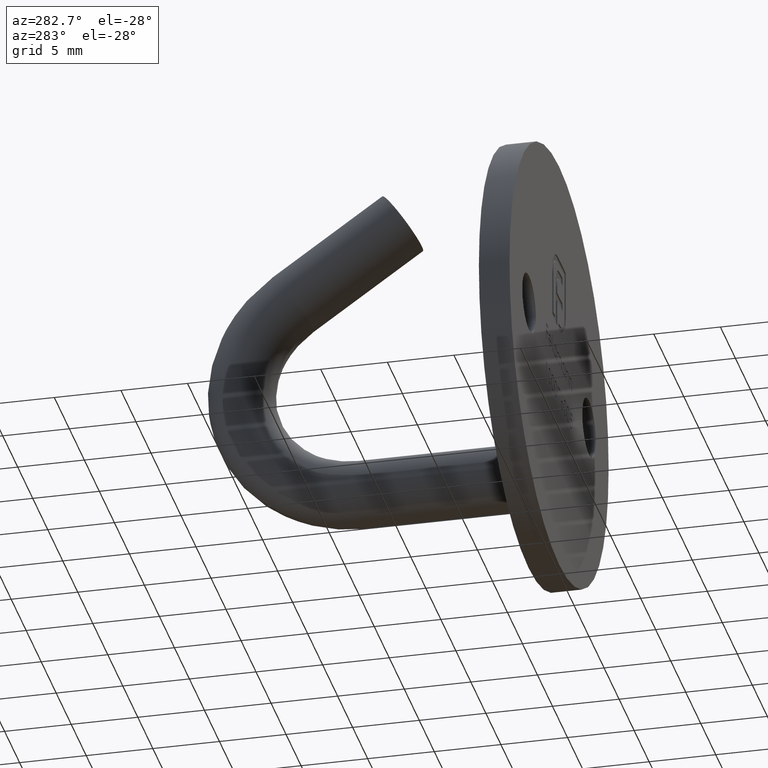
[diagram: clean part render]
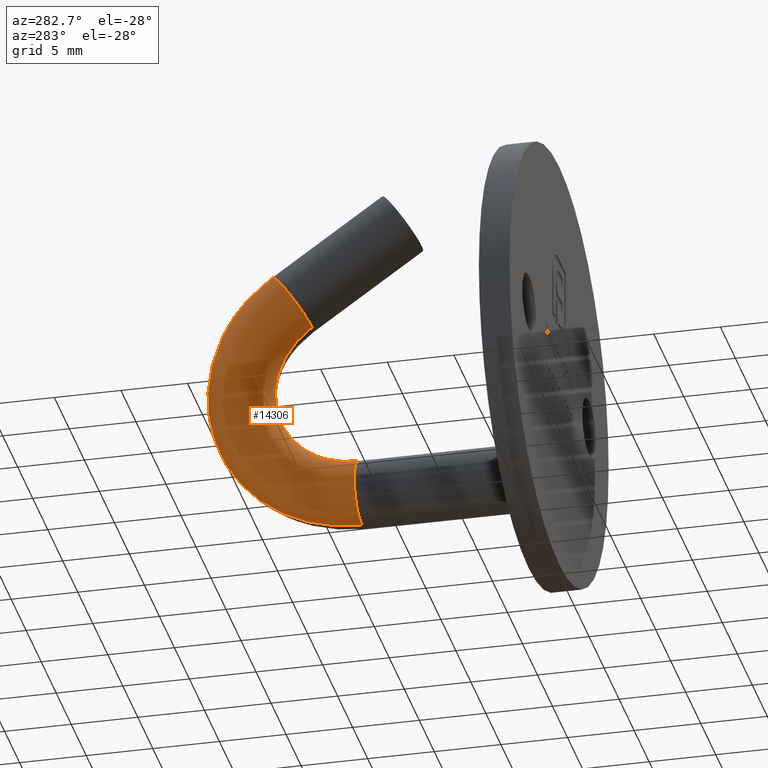
[diagram: same view with one face highlighted and labeled with its STEP entity id]
A machine part, auxiliary view. The second image highlights one B-rep face of the part: STEP entity #14306.
In plain terms, the highlighted toroidal blend (fillet) surface has major radius 9 mm and minor (blend) radius 2.5 mm.
Its self-contained STEP definition (entity closure, byte-faithful):
#479 = CARTESIAN_POINT ( 'NONE',  ( 0.000000000000000000, 14.80000000000000249, 0.000000000000000000 ) ) ;
#625 = DIRECTION ( 'NONE',  ( 0.000000000000000000, 0.000000000000000000, -1.000000000000000000 ) ) ;
#1436 = EDGE_CURVE ( 'NONE', #13294, #2883, #4112, .T. ) ;
#1441 = CIRCLE ( 'NONE', #14201, 2.500000000000000444 ) ;
#1639 = DIRECTION ( 'NONE',  ( 1.000000000000000000, 0.000000000000000000, 0.000000000000000000 ) ) ;
#1644 = DIRECTION ( 'NONE',  ( 1.000000000000000000, 0.000000000000000000, 0.000000000000000000 ) ) ;
#2028 = CARTESIAN_POINT ( 'NONE',  ( 3.061616997868383634E-16, 21.39612901803698364, 9.420248509323439379 ) ) ;
#2356 = CARTESIAN_POINT ( 'NONE',  ( 0.000000000000000000, 18.52824683628177382, 5.324488287878466508 ) ) ;
#2537 = DIRECTION ( 'NONE',  ( 0.000000000000000000, -1.000000000000000000, 0.000000000000000000 ) ) ;
#2883 = VERTEX_POINT ( 'NONE', #2028 ) ;
#2958 = AXIS2_PLACEMENT_3D ( 'NONE', #13998, #13907, #15305 ) ;
#3383 = EDGE_CURVE ( 'NONE', #10944, #13294, #1441, .T. ) ;
#3468 = ORIENTED_EDGE ( 'NONE', *, *, #1436, .F. ) ;
#3503 = EDGE_LOOP ( 'NONE', ( #3468, #14591, #3872, #11703 ) ) ;
#3872 = ORIENTED_EDGE ( 'NONE', *, *, #10019, .T. ) ;
#3979 = TOROIDAL_SURFACE ( 'NONE', #12438, 9.000000000000001776, 2.500000000000000444 ) ;
#4112 = CIRCLE ( 'NONE', #11848, 11.50000000000000178 ) ;
#5297 = CIRCLE ( 'NONE', #2958, 2.500000000000000444 ) ;
#5352 = CARTESIAN_POINT ( 'NONE',  ( 0.000000000000000000, 14.80000000000000249, 0.000000000000000000 ) ) ;
#5904 = EDGE_CURVE ( 'NONE', #8685, #2883, #5297, .T. ) ;
#5920 = DIRECTION ( 'NONE',  ( 0.000000000000000000, 0.000000000000000000, -1.000000000000000000 ) ) ;
#7434 = AXIS2_PLACEMENT_3D ( 'NONE', #10633, #14301, #5920 ) ;
#8132 = FACE_OUTER_BOUND ( 'NONE', #3503, .T. ) ;
#8643 = CARTESIAN_POINT ( 'NONE',  ( 3.061616997868383634E-16, 14.80000000000000071, -6.500000000000000888 ) ) ;
#8685 = VERTEX_POINT ( 'NONE', #2356 ) ;
#8727 = DIRECTION ( 'NONE',  ( 0.000000000000000000, 0.000000000000000000, -1.000000000000000000 ) ) ;
#10019 = EDGE_CURVE ( 'NONE', #10944, #8685, #15651, .T. ) ;
#10633 = CARTESIAN_POINT ( 'NONE',  ( -3.061616997868383634E-16, 14.80000000000000249, 0.000000000000000000 ) ) ;
#10944 = VERTEX_POINT ( 'NONE', #8643 ) ;
#11118 = CARTESIAN_POINT ( 'NONE',  ( 0.000000000000000000, 14.80000000000000071, -9.000000000000001776 ) ) ;
#11703 = ORIENTED_EDGE ( 'NONE', *, *, #5904, .T. ) ;
#11848 = AXIS2_PLACEMENT_3D ( 'NONE', #5352, #1639, #625 ) ;
#12438 = AXIS2_PLACEMENT_3D ( 'NONE', #479, #1644, #8727 ) ;
#12924 = CARTESIAN_POINT ( 'NONE',  ( 0.000000000000000000, 14.80000000000000071, -11.50000000000000178 ) ) ;
#13294 = VERTEX_POINT ( 'NONE', #12924 ) ;
#13907 = DIRECTION ( 'NONE',  ( 0.000000000000000000, 0.8191520442889949072, -0.5735764363510416075 ) ) ;
#13998 = CARTESIAN_POINT ( 'NONE',  ( 0.000000000000000000, 19.96218792715938051, 7.372368398600952943 ) ) ;
#14201 = AXIS2_PLACEMENT_3D ( 'NONE', #11118, #2537, #14707 ) ;
#14301 = DIRECTION ( 'NONE',  ( 1.000000000000000000, 0.000000000000000000, 0.000000000000000000 ) ) ;
#14306 = ADVANCED_FACE ( 'NONE', ( #8132 ), #3979, .T. ) ;
#14591 = ORIENTED_EDGE ( 'NONE', *, *, #3383, .F. ) ;
#14707 = DIRECTION ( 'NONE',  ( 0.000000000000000000, 0.000000000000000000, -1.000000000000000000 ) ) ;
#15305 = DIRECTION ( 'NONE',  ( 0.000000000000000000, 0.5735764363510419406, 0.8191520442889945741 ) ) ;
#15651 = CIRCLE ( 'NONE', #7434, 6.500000000000000888 ) ;